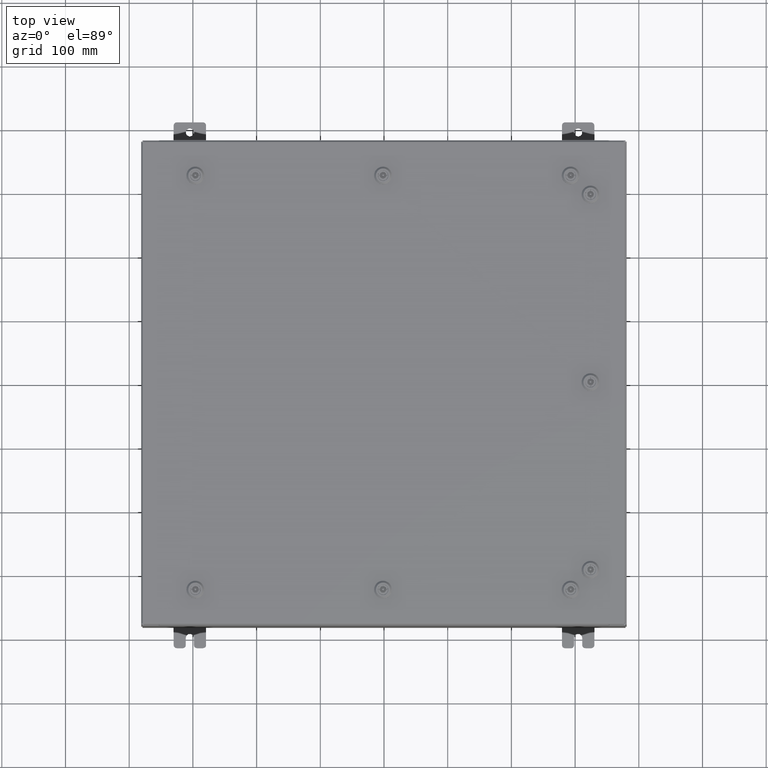
[diagram: clean part render]
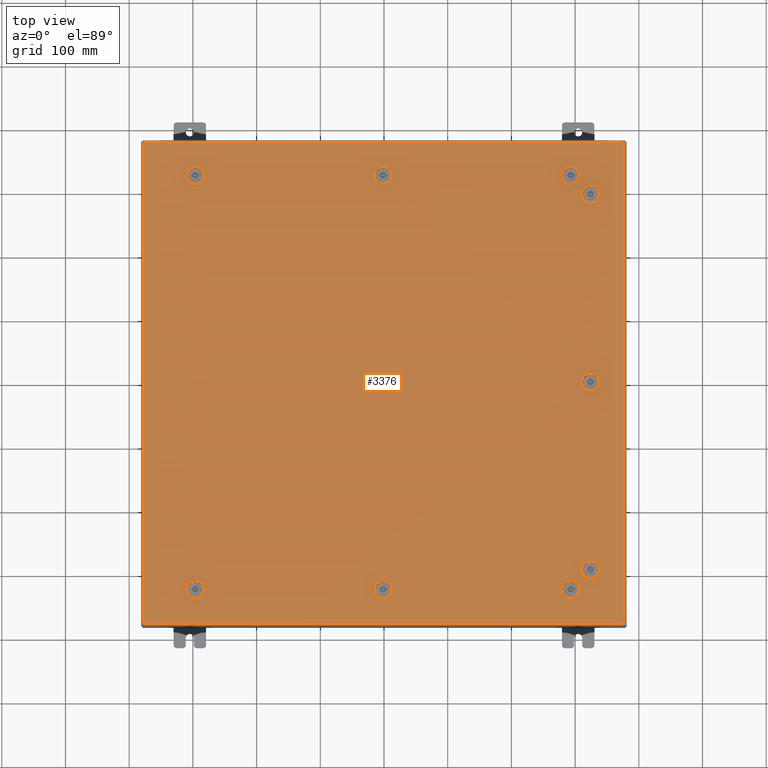
[diagram: same view with one face highlighted and labeled with its STEP entity id]
A machine part, top view. The second image highlights one B-rep face of the part: STEP entity #3376.
In plain terms, the highlighted planar face has unit normal (0, 0, -1).
Its self-contained STEP definition (entity closure, byte-faithful):
#48 = DIRECTION ( 'NONE',  ( 0.0000000000000000000, 0.0000000000000000000, 1.000000000000000000 ) ) ;
#153 = DIRECTION ( 'NONE',  ( -1.000000000000000000, -0.0000000000000000000, -6.982962677686306200E-015 ) ) ;
#253 = DIRECTION ( 'NONE',  ( 1.000000000000000000, 0.0000000000000000000, 0.0000000000000000000 ) ) ;
#646 = ORIENTED_EDGE ( 'NONE', *, *, #32452, .F. ) ;
#669 = CARTESIAN_POINT ( 'NONE',  ( -11.56249999999998200, -12.78779999999999400, -2.521317385144146900E-013 ) ) ;
#675 = LINE ( 'NONE', #50587, #18994 ) ;
#841 = ORIENTED_EDGE ( 'NONE', *, *, #28963, .F. ) ;
#1004 = AXIS2_PLACEMENT_3D ( 'NONE', #41300, #10973, #46381 ) ;
#1018 = EDGE_LOOP ( 'NONE', ( #36392, #63052, #18006, #1348 ) ) ;
#1156 = CARTESIAN_POINT ( 'NONE',  ( 12.78780000000000600, -11.56250000000001600, -2.429631085186127900E-013 ) ) ;
#1208 = CARTESIAN_POINT ( 'NONE',  ( 0.1994523752679070700, -13.18279999999998400, -2.548900087721007400E-013 ) ) ;
#1300 = CARTESIAN_POINT ( 'NONE',  ( 11.56249999999998200, -12.78779999999999400, -9.280357398645127900E-015 ) ) ;
#1348 = ORIENTED_EDGE ( 'NONE', *, *, #50592, .F. ) ;
#1405 = LINE ( 'NONE', #53388, #53768 ) ;
#1695 = VERTEX_POINT ( 'NONE', #59939 ) ;
#1825 = CARTESIAN_POINT ( 'NONE',  ( 13.18280000000000200, 0.1994523752679009100, 0.0000000000000000000 ) ) ;
#1972 = AXIS2_PLACEMENT_3D ( 'NONE', #51994, #35240, #46007 ) ;
#2126 = DIRECTION ( 'NONE',  ( 1.000000000000000000, 0.0000000000000000000, 0.0000000000000000000 ) ) ;
#2296 = DIRECTION ( 'NONE',  ( -6.982962677686266700E-015, -6.982962677686266700E-015, 1.000000000000000000 ) ) ;
#2417 = CARTESIAN_POINT ( 'NONE',  ( 12.39280000000001400, 0.1994523752679053800, 0.0000000000000000000 ) ) ;
#2479 = EDGE_CURVE ( 'NONE', #55523, #43139, #8372, .T. ) ;
#3130 = CARTESIAN_POINT ( 'NONE',  ( 1.529834876451987200E-014, -12.78779999999999400, -2.521317385144146900E-013 ) ) ;
#3267 = VERTEX_POINT ( 'NONE', #46386 ) ;
#3294 = ORIENTED_EDGE ( 'NONE', *, *, #45779, .F. ) ;
#3324 = ORIENTED_EDGE ( 'NONE', *, *, #17407, .F. ) ;
#3360 = CIRCLE ( 'NONE', #1972, 0.4424999999999973400 ) ;
#3376 = ADVANCED_FACE ( 'NONE', ( #12305, #13903, #25836, #52721, #64558, #51096, #37646, #24218, #10689, #62994 ), #28034, .F. ) ;
#3401 = CARTESIAN_POINT ( 'NONE',  ( 11.36304762473209700, 12.39279999999999800, -2.414586126232981000E-013 ) ) ;
#3606 = CARTESIAN_POINT ( 'NONE',  ( -11.56249999999998200, -12.78779999999999400, -2.521317385144146900E-013 ) ) ;
#3649 = CARTESIAN_POINT ( 'NONE',  ( 11.36304762473210100, -12.39279999999999800, -7.914855633430593000E-015 ) ) ;
#4614 = EDGE_CURVE ( 'NONE', #37147, #35665, #11399, .T. ) ;
#4733 = CARTESIAN_POINT ( 'NONE',  ( 11.56249999999998200, 12.78779999999999400, -2.428513811157696100E-013 ) ) ;
#4852 = DIRECTION ( 'NONE',  ( 1.000000000000000000, 0.0000000000000000000, 0.0000000000000000000 ) ) ;
#5065 = VERTEX_POINT ( 'NONE', #42008 ) ;
#5101 = EDGE_CURVE ( 'NONE', #31061, #18790, #37517, .T. ) ;
#5513 = LINE ( 'NONE', #10070, #57866 ) ;
#5543 = AXIS2_PLACEMENT_3D ( 'NONE', #39487, #9154, #44561 ) ;
#5715 = CARTESIAN_POINT ( 'NONE',  ( 0.1994523752678995500, 12.39279999999999800, 0.0000000000000000000 ) ) ;
#5767 = CARTESIAN_POINT ( 'NONE',  ( 12.39280000000001400, -11.76195237526790500, -2.443558770110843000E-013 ) ) ;
#5777 = DIRECTION ( 'NONE',  ( 0.0000000000000000000, 1.000000000000000000, 6.982962677686304600E-015 ) ) ;
#5797 = CARTESIAN_POINT ( 'NONE',  ( 11.56249999999998200, 12.78779999999999400, -2.428513811157696100E-013 ) ) ;
#5824 = CARTESIAN_POINT ( 'NONE',  ( 11.36304762473208800, 13.18279999999998400, -2.414586126232980000E-013 ) ) ;
#5864 = CARTESIAN_POINT ( 'NONE',  ( 12.78780000000000600, 1.529834876451990400E-014, 0.0000000000000000000 ) ) ;
#5973 = EDGE_CURVE ( 'NONE', #41554, #52180, #3360, .T. ) ;
#6167 = VERTEX_POINT ( 'NONE', #54558 ) ;
#6243 = DIRECTION ( 'NONE',  ( 0.0000000000000000000, 1.000000000000000000, 6.982962677686304600E-015 ) ) ;
#6303 = VERTEX_POINT ( 'NONE', #18254 ) ;
#6355 = CIRCLE ( 'NONE', #56265, 0.4424999999999983400 ) ;
#6391 = EDGE_CURVE ( 'NONE', #45069, #8326, #28891, .T. ) ;
#6452 = VECTOR ( 'NONE', #24974, 39.37007874015748100 ) ;
#6502 = ORIENTED_EDGE ( 'NONE', *, *, #55567, .F. ) ;
#7428 = VERTEX_POINT ( 'NONE', #29966 ) ;
#7524 = VERTEX_POINT ( 'NONE', #5767 ) ;
#7945 = DIRECTION ( 'NONE',  ( 1.095739467627838000E-014, -1.000000000000000000, -6.982962677686345600E-015 ) ) ;
#8222 = DIRECTION ( 'NONE',  ( 0.0000000000000000000, 1.000000000000000000, 6.982962677686270700E-015 ) ) ;
#8326 = VERTEX_POINT ( 'NONE', #29236 ) ;
#8372 = CIRCLE ( 'NONE', #58753, 0.4424999999999983400 ) ;
#8375 = VECTOR ( 'NONE', #57677, 39.37007874015748100 ) ;
#8398 = DIRECTION ( 'NONE',  ( 0.0000000000000000000, 0.0000000000000000000, 1.000000000000000000 ) ) ;
#8708 = DIRECTION ( 'NONE',  ( 0.0000000000000000000, 1.000000000000000000, 6.982962677686270700E-015 ) ) ;
#8798 = EDGE_CURVE ( 'NONE', #56390, #41554, #9596, .T. ) ;
#9154 = DIRECTION ( 'NONE',  ( 0.0000000000000000000, 0.0000000000000000000, 1.000000000000000000 ) ) ;
#9226 = CARTESIAN_POINT ( 'NONE',  ( 11.56249999999998200, -12.78779999999999400, -9.280357398645127900E-015 ) ) ;
#9359 = CIRCLE ( 'NONE', #30351, 0.4424999999999983400 ) ;
#9442 = CARTESIAN_POINT ( 'NONE',  ( -11.76195237526786200, 13.18279999999999000, 0.0000000000000000000 ) ) ;
#9596 = LINE ( 'NONE', #5715, #36580 ) ;
#9601 = CARTESIAN_POINT ( 'NONE',  ( 14.84979999999999700, 14.84980000000000000, -1.297627796990525000E-015 ) ) ;
#9663 = LINE ( 'NONE', #18964, #33520 ) ;
#9714 = ORIENTED_EDGE ( 'NONE', *, *, #5973, .F. ) ;
#9785 = CIRCLE ( 'NONE', #46132, 0.4424999999999969000 ) ;
#9812 = EDGE_CURVE ( 'NONE', #63116, #39309, #9663, .T. ) ;
#9825 = DIRECTION ( 'NONE',  ( -1.000000000000000000, 0.0000000000000000000, 6.982962677686304600E-015 ) ) ;
#10070 = CARTESIAN_POINT ( 'NONE',  ( 0.1994523752678995500, -12.39279999999999800, -2.493734682567286900E-013 ) ) ;
#10139 = CARTESIAN_POINT ( 'NONE',  ( 12.39280000000001400, 11.76195237526790500, 0.0000000000000000000 ) ) ;
#10566 = VECTOR ( 'NONE', #18484, 39.37007874015748100 ) ;
#10689 = FACE_BOUND ( 'NONE', #59672, .T. ) ;
#10884 = EDGE_CURVE ( 'NONE', #35665, #6303, #51614, .T. ) ;
#10906 = DIRECTION ( 'NONE',  ( -1.000000000000000000, 0.0000000000000000000, 6.982962677686304600E-015 ) ) ;
#10968 = DIRECTION ( 'NONE',  ( 1.000000000000000000, 0.0000000000000000000, 0.0000000000000000000 ) ) ;
#10973 = DIRECTION ( 'NONE',  ( -6.982962677686266700E-015, -6.982962677686266700E-015, 1.000000000000000000 ) ) ;
#11048 = DIRECTION ( 'NONE',  ( 1.000000000000000000, -0.0000000000000000000, -0.0000000000000000000 ) ) ;
#11151 = VERTEX_POINT ( 'NONE', #48587 ) ;
#11399 = LINE ( 'NONE', #38879, #23353 ) ;
#12113 = EDGE_CURVE ( 'NONE', #22071, #7428, #6355, .T. ) ;
#12165 = CARTESIAN_POINT ( 'NONE',  ( 0.1994523752679068500, 13.18279999999998400, 0.0000000000000000000 ) ) ;
#12305 = FACE_BOUND ( 'NONE', #64754, .T. ) ;
#12311 = CARTESIAN_POINT ( 'NONE',  ( 1.529834876451987200E-014, -12.78779999999999400, -2.521317385144146900E-013 ) ) ;
#12477 = ORIENTED_EDGE ( 'NONE', *, *, #46999, .F. ) ;
#12507 = EDGE_LOOP ( 'NONE', ( #31739, #65723, #24328, #33215, #21151 ) ) ;
#12625 = VERTEX_POINT ( 'NONE', #59446 ) ;
#12951 = VERTEX_POINT ( 'NONE', #31796 ) ;
#13125 = EDGE_LOOP ( 'NONE', ( #3324, #37306, #64948, #19006, #13219 ) ) ;
#13129 = ORIENTED_EDGE ( 'NONE', *, *, #56412, .T. ) ;
#13148 = CARTESIAN_POINT ( 'NONE',  ( 11.76195237526786600, 12.39279999999999800, -2.442441496082410700E-013 ) ) ;
#13219 = ORIENTED_EDGE ( 'NONE', *, *, #18876, .F. ) ;
#13580 = VERTEX_POINT ( 'NONE', #17449 ) ;
#13643 = DIRECTION ( 'NONE',  ( 1.000000000000000000, 0.0000000000000000000, -6.982962677686265900E-015 ) ) ;
#13903 = FACE_BOUND ( 'NONE', #1018, .T. ) ;
#13972 = CARTESIAN_POINT ( 'NONE',  ( 14.84979999999999700, -14.84979999999999500, -2.048885995248197400E-016 ) ) ;
#14119 = CIRCLE ( 'NONE', #19590, 0.4424999999999961700 ) ;
#14380 = DIRECTION ( 'NONE',  ( 1.000000000000000000, 0.0000000000000000000, 6.982962677686252500E-015 ) ) ;
#14609 = VERTEX_POINT ( 'NONE', #9442 ) ;
#14672 = ORIENTED_EDGE ( 'NONE', *, *, #46310, .F. ) ;
#14875 = EDGE_CURVE ( 'NONE', #12625, #7524, #1405, .T. ) ;
#14894 = AXIS2_PLACEMENT_3D ( 'NONE', #5797, #41222, #10906 ) ;
#15220 = DIRECTION ( 'NONE',  ( 5.478697338139220100E-015, 1.000000000000000000, 6.982962677686306200E-015 ) ) ;
#15223 = DIRECTION ( 'NONE',  ( -1.000000000000000000, 0.0000000000000000000, 7.785697190086061500E-029 ) ) ;
#15276 = AXIS2_PLACEMENT_3D ( 'NONE', #24721, #60081, #29818 ) ;
#15396 = VECTOR ( 'NONE', #48748, 39.37007874015748100 ) ;
#15510 = CARTESIAN_POINT ( 'NONE',  ( -11.76195237526786700, -12.39279999999999800, -2.493734682567286400E-013 ) ) ;
#16077 = VECTOR ( 'NONE', #49866, 39.37007874015748100 ) ;
#16390 = AXIS2_PLACEMENT_3D ( 'NONE', #28468, #27815, #28095 ) ;
#16441 = EDGE_LOOP ( 'NONE', ( #40206, #41949, #32749, #6502, #61306 ) ) ;
#16505 = VECTOR ( 'NONE', #50656, 39.37007874015748100 ) ;
#16627 = VERTEX_POINT ( 'NONE', #51172 ) ;
#16790 = LINE ( 'NONE', #30450, #30281 ) ;
#16997 = EDGE_CURVE ( 'NONE', #35439, #65418, #21208, .T. ) ;
#17407 = EDGE_CURVE ( 'NONE', #16627, #26454, #33830, .T. ) ;
#17415 = DIRECTION ( 'NONE',  ( 0.0000000000000000000, 1.000000000000000000, 6.982962677686304600E-015 ) ) ;
#17449 = CARTESIAN_POINT ( 'NONE',  ( -0.1994523752678657400, -13.18279999999999000, 0.0000000000000000000 ) ) ;
#17598 = CARTESIAN_POINT ( 'NONE',  ( -11.56249999999998200, 12.78779999999999400, 0.0000000000000000000 ) ) ;
#17805 = VERTEX_POINT ( 'NONE', #35814 ) ;
#18006 = ORIENTED_EDGE ( 'NONE', *, *, #26144, .F. ) ;
#18012 = VECTOR ( 'NONE', #63130, 39.37007874015748100 ) ;
#18254 = CARTESIAN_POINT ( 'NONE',  ( 11.36304762473209200, -13.18279999999998400, -1.343139614880270700E-014 ) ) ;
#18270 = EDGE_CURVE ( 'NONE', #32992, #35439, #33116, .T. ) ;
#18484 = DIRECTION ( 'NONE',  ( -1.000000000000000000, -1.095739467627832000E-014, 6.982962677686228800E-015 ) ) ;
#18790 = VERTEX_POINT ( 'NONE', #40205 ) ;
#18876 = EDGE_CURVE ( 'NONE', #26454, #17805, #42481, .T. ) ;
#18964 = CARTESIAN_POINT ( 'NONE',  ( -11.36304762473210100, -12.39279999999999800, -2.493734682567286900E-013 ) ) ;
#18994 = VECTOR ( 'NONE', #15220, 39.37007874015748100 ) ;
#19006 = ORIENTED_EDGE ( 'NONE', *, *, #28971, .F. ) ;
#19222 = CARTESIAN_POINT ( 'NONE',  ( 0.4425000000000126100, 12.78779999999999400, 0.0000000000000000000 ) ) ;
#19359 = CIRCLE ( 'NONE', #28411, 0.4424999999999983400 ) ;
#19429 = VECTOR ( 'NONE', #39370, 39.37007874015748100 ) ;
#19590 = AXIS2_PLACEMENT_3D ( 'NONE', #1156, #36628, #6243 ) ;
#19844 = CARTESIAN_POINT ( 'NONE',  ( -11.36304762473208800, 13.18279999999998400, 0.0000000000000000000 ) ) ;
#19930 = EDGE_CURVE ( 'NONE', #11151, #12625, #36096, .T. ) ;
#20011 = LINE ( 'NONE', #19844, #6452 ) ;
#20047 = ORIENTED_EDGE ( 'NONE', *, *, #18270, .F. ) ;
#20137 = DIRECTION ( 'NONE',  ( -5.478697338139220100E-015, 1.000000000000000000, -0.0000000000000000000 ) ) ;
#21050 = ORIENTED_EDGE ( 'NONE', *, *, #35931, .F. ) ;
#21151 = ORIENTED_EDGE ( 'NONE', *, *, #10884, .F. ) ;
#21154 = EDGE_CURVE ( 'NONE', #50694, #62989, #59776, .T. ) ;
#21208 = LINE ( 'NONE', #2417, #18012 ) ;
#21238 = DIRECTION ( 'NONE',  ( -0.0000000000000000000, -6.982962677686266700E-015, 1.000000000000000000 ) ) ;
#21491 = CIRCLE ( 'NONE', #33298, 0.4424999999999961700 ) ;
#21927 = CARTESIAN_POINT ( 'NONE',  ( -11.36304762473209200, -13.18279999999998400, -2.548900087721007400E-013 ) ) ;
#21942 = LINE ( 'NONE', #1825, #8375 ) ;
#21999 = EDGE_CURVE ( 'NONE', #52180, #44100, #52626, .T. ) ;
#22071 = VERTEX_POINT ( 'NONE', #23920 ) ;
#22478 = ORIENTED_EDGE ( 'NONE', *, *, #45283, .F. ) ;
#22728 = DIRECTION ( 'NONE',  ( 1.000000000000000000, 0.0000000000000000000, 0.0000000000000000000 ) ) ;
#23004 = DIRECTION ( 'NONE',  ( 1.000000000000000000, 0.0000000000000000000, 6.982962677686252500E-015 ) ) ;
#23043 = EDGE_CURVE ( 'NONE', #27487, #34203, #21491, .T. ) ;
#23266 = AXIS2_PLACEMENT_3D ( 'NONE', #5864, #41292, #10968 ) ;
#23353 = VECTOR ( 'NONE', #153, 39.37007874015748100 ) ;
#23408 = AXIS2_PLACEMENT_3D ( 'NONE', #60960, #30684, #253 ) ;
#23605 = DIRECTION ( 'NONE',  ( 1.000000000000000000, -0.0000000000000000000, -0.0000000000000000000 ) ) ;
#23920 = CARTESIAN_POINT ( 'NONE',  ( 12.39280000000001000, 11.36304762473213300, 0.0000000000000000000 ) ) ;
#24071 = DIRECTION ( 'NONE',  ( -1.000000000000000000, 0.0000000000000000000, 7.785697190086082800E-029 ) ) ;
#24218 = FACE_BOUND ( 'NONE', #16441, .T. ) ;
#24328 = ORIENTED_EDGE ( 'NONE', *, *, #2479, .F. ) ;
#24489 = ORIENTED_EDGE ( 'NONE', *, *, #24601, .F. ) ;
#24601 = EDGE_CURVE ( 'NONE', #26060, #11151, #675, .T. ) ;
#24707 = ORIENTED_EDGE ( 'NONE', *, *, #59465, .F. ) ;
#24721 = CARTESIAN_POINT ( 'NONE',  ( 11.56249999999998200, 12.78779999999999400, -2.428513811157696100E-013 ) ) ;
#24920 = VECTOR ( 'NONE', #20137, 39.37007874015748100 ) ;
#24973 = CARTESIAN_POINT ( 'NONE',  ( 14.84979999999999700, -14.84979999999999500, -2.048885995248197400E-016 ) ) ;
#24974 = DIRECTION ( 'NONE',  ( -1.000000000000000000, 1.095739467627832000E-014, 0.0000000000000000000 ) ) ;
#25365 = CARTESIAN_POINT ( 'NONE',  ( 11.36304762473209700, 12.39279999999999800, -2.414586126232981000E-013 ) ) ;
#25515 = ORIENTED_EDGE ( 'NONE', *, *, #31479, .F. ) ;
#25836 = FACE_BOUND ( 'NONE', #59801, .T. ) ;
#25911 = ORIENTED_EDGE ( 'NONE', *, *, #21999, .F. ) ;
#26060 = VERTEX_POINT ( 'NONE', #44877 ) ;
#26144 = EDGE_CURVE ( 'NONE', #5065, #22071, #56910, .T. ) ;
#26171 = CARTESIAN_POINT ( 'NONE',  ( -14.84979999999999700, 14.84979999999999700, -2.048885995248197400E-016 ) ) ;
#26454 = VERTEX_POINT ( 'NONE', #21927 ) ;
#26664 = AXIS2_PLACEMENT_3D ( 'NONE', #51483, #21238, #56623 ) ;
#27218 = CIRCLE ( 'NONE', #14894, 0.4424999999999961700 ) ;
#27487 = VERTEX_POINT ( 'NONE', #13148 ) ;
#27681 = AXIS2_PLACEMENT_3D ( 'NONE', #669, #36146, #5777 ) ;
#27815 = DIRECTION ( 'NONE',  ( 0.0000000000000000000, 0.0000000000000000000, -1.000000000000000000 ) ) ;
#28034 = PLANE ( 'NONE',  #16390 ) ;
#28095 = DIRECTION ( 'NONE',  ( -1.000000000000000000, 0.0000000000000000000, -0.0000000000000000000 ) ) ;
#28162 = CARTESIAN_POINT ( 'NONE',  ( 1.529834876451987200E-014, 12.78779999999999400, 0.0000000000000000000 ) ) ;
#28343 = CARTESIAN_POINT ( 'NONE',  ( 12.00499999999997900, 12.78779999999999400, -2.459413421006457100E-013 ) ) ;
#28411 = AXIS2_PLACEMENT_3D ( 'NONE', #9226, #44632, #14380 ) ;
#28468 = CARTESIAN_POINT ( 'NONE',  ( 0.0000000000000000000, 0.0000000000000000000, 0.0000000000000000000 ) ) ;
#28501 = CARTESIAN_POINT ( 'NONE',  ( 12.39280000000001000, -0.1994523752678671000, 0.0000000000000000000 ) ) ;
#28569 = ORIENTED_EDGE ( 'NONE', *, *, #5101, .F. ) ;
#28573 = EDGE_CURVE ( 'NONE', #52800, #32992, #21942, .T. ) ;
#28651 = CIRCLE ( 'NONE', #61757, 0.4424999999999983400 ) ;
#28713 = CARTESIAN_POINT ( 'NONE',  ( 12.78780000000000600, -11.56250000000001600, -2.429631085186127900E-013 ) ) ;
#28891 = LINE ( 'NONE', #64456, #15396 ) ;
#28963 = EDGE_CURVE ( 'NONE', #65418, #52800, #36118, .T. ) ;
#28971 = EDGE_CURVE ( 'NONE', #17805, #63116, #49562, .T. ) ;
#29027 = DIRECTION ( 'NONE',  ( -0.0000000000000000000, -6.982962677686266700E-015, 1.000000000000000000 ) ) ;
#29029 = AXIS2_PLACEMENT_3D ( 'NONE', #28162, #63517, #33260 ) ;
#29068 = ORIENTED_EDGE ( 'NONE', *, *, #8798, .F. ) ;
#29236 = CARTESIAN_POINT ( 'NONE',  ( -14.84979999999999700, -14.84979999999999700, -2.048885995248197400E-016 ) ) ;
#29818 = DIRECTION ( 'NONE',  ( -1.000000000000000000, 0.0000000000000000000, 6.982962677686270700E-015 ) ) ;
#29966 = CARTESIAN_POINT ( 'NONE',  ( 13.18280000000000400, 11.36304762473213100, 0.0000000000000000000 ) ) ;
#29974 = CIRCLE ( 'NONE', #41318, 0.4424999999999961700 ) ;
#30047 = CARTESIAN_POINT ( 'NONE',  ( 11.76195237526786600, -13.18279999999999000, -1.064585916385969600E-014 ) ) ;
#30229 = CARTESIAN_POINT ( 'NONE',  ( -0.1994523752678689600, -12.39279999999999800, -2.493734682567286400E-013 ) ) ;
#30281 = VECTOR ( 'NONE', #35515, 39.37007874015748100 ) ;
#30351 = AXIS2_PLACEMENT_3D ( 'NONE', #3130, #38576, #8222 ) ;
#30450 = CARTESIAN_POINT ( 'NONE',  ( 0.1994523752679067700, 13.18279999999998400, 0.0000000000000000000 ) ) ;
#30496 = CARTESIAN_POINT ( 'NONE',  ( -11.56249999999998200, 12.78779999999999400, 0.0000000000000000000 ) ) ;
#30684 = DIRECTION ( 'NONE',  ( 0.0000000000000000000, 0.0000000000000000000, 1.000000000000000000 ) ) ;
#31036 = VECTOR ( 'NONE', #23605, 39.37007874015748100 ) ;
#31061 = VERTEX_POINT ( 'NONE', #54513 ) ;
#31213 = CARTESIAN_POINT ( 'NONE',  ( 0.4425000000000126100, -12.78779999999999400, -2.521317385144146900E-013 ) ) ;
#31479 = EDGE_CURVE ( 'NONE', #3267, #56390, #9785, .T. ) ;
#31739 = ORIENTED_EDGE ( 'NONE', *, *, #4614, .F. ) ;
#31796 = CARTESIAN_POINT ( 'NONE',  ( -11.76195237526786600, 12.39279999999999800, 0.0000000000000000000 ) ) ;
#32016 = VERTEX_POINT ( 'NONE', #1208 ) ;
#32317 = EDGE_CURVE ( 'NONE', #39309, #16627, #56539, .T. ) ;
#32347 = EDGE_LOOP ( 'NONE', ( #22478, #24707, #21050, #41509, #12477 ) ) ;
#32429 = ORIENTED_EDGE ( 'NONE', *, *, #58588, .F. ) ;
#32452 = EDGE_CURVE ( 'NONE', #18790, #35316, #39845, .T. ) ;
#32566 = DIRECTION ( 'NONE',  ( 0.0000000000000000000, 0.0000000000000000000, 1.000000000000000000 ) ) ;
#32749 = ORIENTED_EDGE ( 'NONE', *, *, #46511, .F. ) ;
#32771 = AXIS2_PLACEMENT_3D ( 'NONE', #59291, #29027, #64359 ) ;
#32992 = VERTEX_POINT ( 'NONE', #38129 ) ;
#33102 = CARTESIAN_POINT ( 'NONE',  ( -11.11999999999998300, 12.78779999999999400, 0.0000000000000000000 ) ) ;
#33116 = CIRCLE ( 'NONE', #23408, 0.4424999999999983400 ) ;
#33125 = CARTESIAN_POINT ( 'NONE',  ( 13.18280000000000200, 11.76195237526789900, 0.0000000000000000000 ) ) ;
#33215 = ORIENTED_EDGE ( 'NONE', *, *, #49151, .F. ) ;
#33260 = DIRECTION ( 'NONE',  ( 1.000000000000000000, 0.0000000000000000000, 0.0000000000000000000 ) ) ;
#33298 = AXIS2_PLACEMENT_3D ( 'NONE', #4733, #40173, #9825 ) ;
#33316 = VECTOR ( 'NONE', #40538, 39.37007874015748100 ) ;
#33379 = EDGE_CURVE ( 'NONE', #8326, #50694, #46114, .T. ) ;
#33520 = VECTOR ( 'NONE', #24071, 39.37007874015748100 ) ;
#33786 = DIRECTION ( 'NONE',  ( 0.0000000000000000000, 1.000000000000000000, 6.982962677686270700E-015 ) ) ;
#33830 = LINE ( 'NONE', #49909, #45632 ) ;
#33981 = CARTESIAN_POINT ( 'NONE',  ( -11.36304762473209700, 12.39279999999999800, 0.0000000000000000000 ) ) ;
#34203 = VERTEX_POINT ( 'NONE', #28343 ) ;
#34852 = LINE ( 'NONE', #48068, #33316 ) ;
#35016 = EDGE_CURVE ( 'NONE', #12951, #1695, #54778, .T. ) ;
#35110 = VECTOR ( 'NONE', #61986, 39.37007874015748100 ) ;
#35117 = CARTESIAN_POINT ( 'NONE',  ( 0.1994523752678995500, 12.39279999999999800, 0.0000000000000000000 ) ) ;
#35240 = DIRECTION ( 'NONE',  ( 0.0000000000000000000, 0.0000000000000000000, 1.000000000000000000 ) ) ;
#35245 = DIRECTION ( 'NONE',  ( 0.0000000000000000000, 0.0000000000000000000, 1.000000000000000000 ) ) ;
#35316 = VERTEX_POINT ( 'NONE', #25365 ) ;
#35439 = VERTEX_POINT ( 'NONE', #42448 ) ;
#35515 = DIRECTION ( 'NONE',  ( -1.000000000000000000, 1.095739467627836100E-014, 0.0000000000000000000 ) ) ;
#35551 = DIRECTION ( 'NONE',  ( 1.000000000000000000, 0.0000000000000000000, 0.0000000000000000000 ) ) ;
#35665 = VERTEX_POINT ( 'NONE', #3649 ) ;
#35814 = CARTESIAN_POINT ( 'NONE',  ( -11.11999999999998700, -12.78779999999999400, -2.521317385144146900E-013 ) ) ;
#35931 = EDGE_CURVE ( 'NONE', #42117, #58384, #5513, .T. ) ;
#36096 = CIRCLE ( 'NONE', #40786, 0.4424999999999983400 ) ;
#36118 = CIRCLE ( 'NONE', #23266, 0.4424999999999983400 ) ;
#36146 = DIRECTION ( 'NONE',  ( -0.0000000000000000000, -6.982962677686266700E-015, 1.000000000000000000 ) ) ;
#36392 = ORIENTED_EDGE ( 'NONE', *, *, #44374, .F. ) ;
#36580 = VECTOR ( 'NONE', #11048, 39.37007874015748100 ) ;
#36628 = DIRECTION ( 'NONE',  ( -0.0000000000000000000, -6.982962677686266700E-015, 1.000000000000000000 ) ) ;
#36773 = CIRCLE ( 'NONE', #5543, 0.4424999999999961700 ) ;
#37086 = EDGE_CURVE ( 'NONE', #61236, #42117, #9359, .T. ) ;
#37147 = VERTEX_POINT ( 'NONE', #48972 ) ;
#37247 = CIRCLE ( 'NONE', #64056, 0.4424999999999983400 ) ;
#37306 = ORIENTED_EDGE ( 'NONE', *, *, #32317, .F. ) ;
#37517 = LINE ( 'NONE', #5824, #10566 ) ;
#37646 = FACE_BOUND ( 'NONE', #64299, .T. ) ;
#38001 = EDGE_CURVE ( 'NONE', #14609, #12951, #29974, .T. ) ;
#38129 = CARTESIAN_POINT ( 'NONE',  ( 13.18280000000000200, 0.1994523752679009100, 0.0000000000000000000 ) ) ;
#38393 = CARTESIAN_POINT ( 'NONE',  ( 13.18280000000000700, -0.1994523752678676000, 0.0000000000000000000 ) ) ;
#38576 = DIRECTION ( 'NONE',  ( -0.0000000000000000000, -6.982962677686266700E-015, 1.000000000000000000 ) ) ;
#38751 = CARTESIAN_POINT ( 'NONE',  ( -11.56249999999998200, 12.78779999999999400, 0.0000000000000000000 ) ) ;
#38879 = CARTESIAN_POINT ( 'NONE',  ( 11.36304762473210100, -12.39279999999999800, -7.914855633430593000E-015 ) ) ;
#39049 = DIRECTION ( 'NONE',  ( -0.0000000000000000000, -6.982962677686266700E-015, 1.000000000000000000 ) ) ;
#39309 = VERTEX_POINT ( 'NONE', #15510 ) ;
#39370 = DIRECTION ( 'NONE',  ( 0.0000000000000000000, 1.000000000000000000, 0.0000000000000000000 ) ) ;
#39487 = CARTESIAN_POINT ( 'NONE',  ( 12.78780000000000600, 11.56250000000001600, 0.0000000000000000000 ) ) ;
#39751 = LINE ( 'NONE', #3401, #65107 ) ;
#39845 = CIRCLE ( 'NONE', #15276, 0.4424999999999983400 ) ;
#40173 = DIRECTION ( 'NONE',  ( 6.982962677686266700E-015, -0.0000000000000000000, 1.000000000000000000 ) ) ;
#40205 = CARTESIAN_POINT ( 'NONE',  ( 11.36304762473208800, 13.18279999999998400, -2.414586126232980000E-013 ) ) ;
#40206 = ORIENTED_EDGE ( 'NONE', *, *, #35016, .F. ) ;
#40538 = DIRECTION ( 'NONE',  ( 1.000000000000000000, -1.095739467627832000E-014, 6.982962677686152300E-015 ) ) ;
#40786 = AXIS2_PLACEMENT_3D ( 'NONE', #28713, #64047, #33786 ) ;
#41222 = DIRECTION ( 'NONE',  ( 6.982962677686266700E-015, -0.0000000000000000000, 1.000000000000000000 ) ) ;
#41292 = DIRECTION ( 'NONE',  ( 0.0000000000000000000, 0.0000000000000000000, 1.000000000000000000 ) ) ;
#41300 = CARTESIAN_POINT ( 'NONE',  ( 11.56249999999998200, -12.78779999999999400, -9.280357398645127900E-015 ) ) ;
#41318 = AXIS2_PLACEMENT_3D ( 'NONE', #17598, #52997, #22728 ) ;
#41509 = ORIENTED_EDGE ( 'NONE', *, *, #37086, .F. ) ;
#41554 = VERTEX_POINT ( 'NONE', #35117 ) ;
#41949 = ORIENTED_EDGE ( 'NONE', *, *, #38001, .F. ) ;
#42008 = CARTESIAN_POINT ( 'NONE',  ( 12.39280000000001400, 11.76195237526790500, 0.0000000000000000000 ) ) ;
#42117 = VERTEX_POINT ( 'NONE', #48750 ) ;
#42448 = CARTESIAN_POINT ( 'NONE',  ( 12.39280000000001400, 0.1994523752679062100, 0.0000000000000000000 ) ) ;
#42481 = CIRCLE ( 'NONE', #27681, 0.4424999999999961700 ) ;
#43139 = VERTEX_POINT ( 'NONE', #49330 ) ;
#43193 = EDGE_CURVE ( 'NONE', #43139, #37147, #19359, .T. ) ;
#43827 = DIRECTION ( 'NONE',  ( 1.000000000000000000, 0.0000000000000000000, 0.0000000000000000000 ) ) ;
#44100 = VERTEX_POINT ( 'NONE', #12165 ) ;
#44374 = EDGE_CURVE ( 'NONE', #7428, #58250, #63661, .T. ) ;
#44423 = AXIS2_PLACEMENT_3D ( 'NONE', #12311, #47704, #17415 ) ;
#44547 = ORIENTED_EDGE ( 'NONE', *, *, #33379, .T. ) ;
#44561 = DIRECTION ( 'NONE',  ( 1.000000000000000000, 0.0000000000000000000, 0.0000000000000000000 ) ) ;
#44632 = DIRECTION ( 'NONE',  ( -6.982962677686266700E-015, -6.982962677686266700E-015, 1.000000000000000000 ) ) ;
#44877 = CARTESIAN_POINT ( 'NONE',  ( 13.18280000000000200, -11.76195237526789900, -2.443558770110843000E-013 ) ) ;
#44889 = DIRECTION ( 'NONE',  ( -1.000000000000000000, -0.0000000000000000000, -0.0000000000000000000 ) ) ;
#45069 = VERTEX_POINT ( 'NONE', #26171 ) ;
#45172 = CIRCLE ( 'NONE', #44423, 0.4424999999999961700 ) ;
#45283 = EDGE_CURVE ( 'NONE', #13580, #32016, #50118, .T. ) ;
#45632 = VECTOR ( 'NONE', #59897, 39.37007874015748100 ) ;
#45779 = EDGE_CURVE ( 'NONE', #34203, #31061, #27218, .T. ) ;
#46007 = DIRECTION ( 'NONE',  ( 1.000000000000000000, 0.0000000000000000000, 0.0000000000000000000 ) ) ;
#46114 = LINE ( 'NONE', #60061, #16077 ) ;
#46132 = AXIS2_PLACEMENT_3D ( 'NONE', #62845, #32566, #2126 ) ;
#46310 = EDGE_CURVE ( 'NONE', #35316, #27487, #39751, .T. ) ;
#46381 = DIRECTION ( 'NONE',  ( 1.000000000000000000, 0.0000000000000000000, 6.982962677686277800E-015 ) ) ;
#46386 = CARTESIAN_POINT ( 'NONE',  ( -0.1994523752678657400, 13.18279999999999000, 0.0000000000000000000 ) ) ;
#46511 = EDGE_CURVE ( 'NONE', #6167, #14609, #20011, .T. ) ;
#46544 = CARTESIAN_POINT ( 'NONE',  ( -11.36304762473210100, -12.39279999999999800, -2.493734682567286900E-013 ) ) ;
#46664 = ORIENTED_EDGE ( 'NONE', *, *, #16997, .F. ) ;
#46874 = CARTESIAN_POINT ( 'NONE',  ( 0.1994523752679067700, -13.18279999999998400, -2.548900087721007400E-013 ) ) ;
#46999 = EDGE_CURVE ( 'NONE', #32016, #61236, #47653, .T. ) ;
#47653 = CIRCLE ( 'NONE', #32771, 0.4424999999999983400 ) ;
#47704 = DIRECTION ( 'NONE',  ( -0.0000000000000000000, -6.982962677686266700E-015, 1.000000000000000000 ) ) ;
#48068 = CARTESIAN_POINT ( 'NONE',  ( 11.36304762473209200, -13.18279999999998400, -1.343139614880271000E-014 ) ) ;
#48587 = CARTESIAN_POINT ( 'NONE',  ( 13.18280000000000400, -11.36304762473213100, -2.415703400261412700E-013 ) ) ;
#48616 = VERTEX_POINT ( 'NONE', #33102 ) ;
#48685 = EDGE_CURVE ( 'NONE', #1695, #48616, #37247, .T. ) ;
#48748 = DIRECTION ( 'NONE',  ( 0.0000000000000000000, -1.000000000000000000, 0.0000000000000000000 ) ) ;
#48750 = CARTESIAN_POINT ( 'NONE',  ( 0.1994523752678995500, -12.39279999999999800, -2.493734682567286900E-013 ) ) ;
#48972 = CARTESIAN_POINT ( 'NONE',  ( 11.76195237526786700, -12.39279999999999800, 0.0000000000000000000 ) ) ;
#49151 = EDGE_CURVE ( 'NONE', #6303, #55523, #34852, .T. ) ;
#49330 = CARTESIAN_POINT ( 'NONE',  ( 12.00499999999998100, -12.78779999999999400, -6.190396413768972700E-015 ) ) ;
#49562 = CIRCLE ( 'NONE', #26664, 0.4424999999999961700 ) ;
#49866 = DIRECTION ( 'NONE',  ( 1.000000000000000000, -0.0000000000000000000, -0.0000000000000000000 ) ) ;
#49909 = CARTESIAN_POINT ( 'NONE',  ( -11.36304762473209200, -13.18279999999998400, -2.548900087721007400E-013 ) ) ;
#50118 = LINE ( 'NONE', #46874, #35110 ) ;
#50386 = CARTESIAN_POINT ( 'NONE',  ( 13.18280000000000200, 11.76195237526789900, 0.0000000000000000000 ) ) ;
#50456 = ORIENTED_EDGE ( 'NONE', *, *, #63149, .F. ) ;
#50587 = CARTESIAN_POINT ( 'NONE',  ( 13.18280000000000200, -11.76195237526789900, -2.443558770110843000E-013 ) ) ;
#50592 = EDGE_CURVE ( 'NONE', #58250, #5065, #36773, .T. ) ;
#50656 = DIRECTION ( 'NONE',  ( -1.095739467627838000E-014, -1.000000000000000000, 0.0000000000000000000 ) ) ;
#50694 = VERTEX_POINT ( 'NONE', #24973 ) ;
#50835 = VECTOR ( 'NONE', #44889, 39.37007874015748100 ) ;
#51096 = FACE_BOUND ( 'NONE', #32347, .T. ) ;
#51172 = CARTESIAN_POINT ( 'NONE',  ( -11.76195237526786600, -13.18279999999999000, 0.0000000000000000000 ) ) ;
#51483 = CARTESIAN_POINT ( 'NONE',  ( -11.56249999999998200, -12.78779999999999400, -2.521317385144146900E-013 ) ) ;
#51614 = CIRCLE ( 'NONE', #1004, 0.4424999999999961700 ) ;
#51803 = ORIENTED_EDGE ( 'NONE', *, *, #21154, .T. ) ;
#51994 = CARTESIAN_POINT ( 'NONE',  ( 1.529834876451987200E-014, 12.78779999999999400, 0.0000000000000000000 ) ) ;
#52180 = VERTEX_POINT ( 'NONE', #19222 ) ;
#52626 = CIRCLE ( 'NONE', #29029, 0.4424999999999973400 ) ;
#52721 = FACE_BOUND ( 'NONE', #12507, .T. ) ;
#52800 = VERTEX_POINT ( 'NONE', #38393 ) ;
#52997 = DIRECTION ( 'NONE',  ( 0.0000000000000000000, 0.0000000000000000000, 1.000000000000000000 ) ) ;
#53388 = CARTESIAN_POINT ( 'NONE',  ( 12.39280000000001400, -11.76195237526790500, -2.443558770110843500E-013 ) ) ;
#53660 = ORIENTED_EDGE ( 'NONE', *, *, #23043, .F. ) ;
#53768 = VECTOR ( 'NONE', #7945, 39.37007874015748100 ) ;
#53871 = AXIS2_PLACEMENT_3D ( 'NONE', #3606, #39049, #8708 ) ;
#54513 = CARTESIAN_POINT ( 'NONE',  ( 11.76195237526786200, 13.18279999999999000, 0.0000000000000000000 ) ) ;
#54558 = CARTESIAN_POINT ( 'NONE',  ( -11.36304762473208800, 13.18279999999998400, 0.0000000000000000000 ) ) ;
#54778 = LINE ( 'NONE', #33981, #31036 ) ;
#55287 = ORIENTED_EDGE ( 'NONE', *, *, #19930, .F. ) ;
#55523 = VERTEX_POINT ( 'NONE', #30047 ) ;
#55567 = EDGE_CURVE ( 'NONE', #48616, #6167, #28651, .T. ) ;
#55603 = CARTESIAN_POINT ( 'NONE',  ( 14.84979999999999700, 14.84980000000000000, -1.297627796990525000E-015 ) ) ;
#56265 = AXIS2_PLACEMENT_3D ( 'NONE', #65518, #35245, #4852 ) ;
#56390 = VERTEX_POINT ( 'NONE', #65497 ) ;
#56412 = EDGE_CURVE ( 'NONE', #62989, #45069, #64304, .T. ) ;
#56539 = CIRCLE ( 'NONE', #53871, 0.4424999999999983400 ) ;
#56623 = DIRECTION ( 'NONE',  ( 0.0000000000000000000, 1.000000000000000000, 6.982962677686304600E-015 ) ) ;
#56910 = LINE ( 'NONE', #10139, #16505 ) ;
#57677 = DIRECTION ( 'NONE',  ( -5.478697338139235000E-015, 1.000000000000000000, -0.0000000000000000000 ) ) ;
#57787 = EDGE_LOOP ( 'NONE', ( #44547, #51803, #13129, #62850 ) ) ;
#57866 = VECTOR ( 'NONE', #15223, 39.37007874015748100 ) ;
#58250 = VERTEX_POINT ( 'NONE', #33125 ) ;
#58384 = VERTEX_POINT ( 'NONE', #30229 ) ;
#58588 = EDGE_CURVE ( 'NONE', #44100, #3267, #16790, .T. ) ;
#58753 = AXIS2_PLACEMENT_3D ( 'NONE', #1300, #2296, #23004 ) ;
#58759 = ORIENTED_EDGE ( 'NONE', *, *, #28573, .F. ) ;
#59291 = CARTESIAN_POINT ( 'NONE',  ( 1.529834876451987200E-014, -12.78779999999999400, -2.521317385144146900E-013 ) ) ;
#59446 = CARTESIAN_POINT ( 'NONE',  ( 12.39280000000001000, -11.36304762473213300, 0.0000000000000000000 ) ) ;
#59465 = EDGE_CURVE ( 'NONE', #58384, #13580, #45172, .T. ) ;
#59672 = EDGE_LOOP ( 'NONE', ( #29068, #25515, #32429, #25911, #9714 ) ) ;
#59776 = LINE ( 'NONE', #13972, #19429 ) ;
#59801 = EDGE_LOOP ( 'NONE', ( #58759, #841, #46664, #20047 ) ) ;
#59897 = DIRECTION ( 'NONE',  ( 1.000000000000000000, 1.095739467627832000E-014, 7.785697190085955000E-029 ) ) ;
#59939 = CARTESIAN_POINT ( 'NONE',  ( -11.36304762473209700, 12.39279999999999800, 0.0000000000000000000 ) ) ;
#60061 = CARTESIAN_POINT ( 'NONE',  ( -14.84979999999999700, -14.84979999999999700, -2.048885995248197400E-016 ) ) ;
#60081 = DIRECTION ( 'NONE',  ( 6.982962677686266700E-015, -0.0000000000000000000, 1.000000000000000000 ) ) ;
#60960 = CARTESIAN_POINT ( 'NONE',  ( 12.78780000000000600, 1.529834876451990400E-014, 0.0000000000000000000 ) ) ;
#61236 = VERTEX_POINT ( 'NONE', #31213 ) ;
#61306 = ORIENTED_EDGE ( 'NONE', *, *, #48685, .F. ) ;
#61757 = AXIS2_PLACEMENT_3D ( 'NONE', #30496, #48, #35551 ) ;
#61986 = DIRECTION ( 'NONE',  ( 1.000000000000000000, 1.095739467627836100E-014, 7.785697190085984100E-029 ) ) ;
#62845 = CARTESIAN_POINT ( 'NONE',  ( 1.529834876451987200E-014, 12.78779999999999400, 0.0000000000000000000 ) ) ;
#62850 = ORIENTED_EDGE ( 'NONE', *, *, #6391, .T. ) ;
#62989 = VERTEX_POINT ( 'NONE', #9601 ) ;
#62994 = FACE_OUTER_BOUND ( 'NONE', #57787, .T. ) ;
#63052 = ORIENTED_EDGE ( 'NONE', *, *, #12113, .F. ) ;
#63116 = VERTEX_POINT ( 'NONE', #46544 ) ;
#63130 = DIRECTION ( 'NONE',  ( -1.095739467627836100E-014, -1.000000000000000000, 0.0000000000000000000 ) ) ;
#63149 = EDGE_CURVE ( 'NONE', #7524, #26060, #14119, .T. ) ;
#63517 = DIRECTION ( 'NONE',  ( 0.0000000000000000000, 0.0000000000000000000, 1.000000000000000000 ) ) ;
#63661 = LINE ( 'NONE', #50386, #24920 ) ;
#63688 = ORIENTED_EDGE ( 'NONE', *, *, #14875, .F. ) ;
#64047 = DIRECTION ( 'NONE',  ( -0.0000000000000000000, -6.982962677686266700E-015, 1.000000000000000000 ) ) ;
#64056 = AXIS2_PLACEMENT_3D ( 'NONE', #38751, #8398, #43827 ) ;
#64299 = EDGE_LOOP ( 'NONE', ( #28569, #3294, #53660, #14672, #646 ) ) ;
#64304 = LINE ( 'NONE', #55603, #50835 ) ;
#64359 = DIRECTION ( 'NONE',  ( 0.0000000000000000000, 1.000000000000000000, 6.982962677686270700E-015 ) ) ;
#64456 = CARTESIAN_POINT ( 'NONE',  ( -14.84979999999999700, 14.84979999999999700, -2.048885995248197400E-016 ) ) ;
#64558 = FACE_BOUND ( 'NONE', #13125, .T. ) ;
#64754 = EDGE_LOOP ( 'NONE', ( #63688, #55287, #24489, #50456 ) ) ;
#64948 = ORIENTED_EDGE ( 'NONE', *, *, #9812, .F. ) ;
#65107 = VECTOR ( 'NONE', #13643, 39.37007874015748100 ) ;
#65418 = VERTEX_POINT ( 'NONE', #28501 ) ;
#65497 = CARTESIAN_POINT ( 'NONE',  ( -0.1994523752678689600, 12.39279999999999800, 0.0000000000000000000 ) ) ;
#65518 = CARTESIAN_POINT ( 'NONE',  ( 12.78780000000000600, 11.56250000000001600, 0.0000000000000000000 ) ) ;
#65723 = ORIENTED_EDGE ( 'NONE', *, *, #43193, .F. ) ;